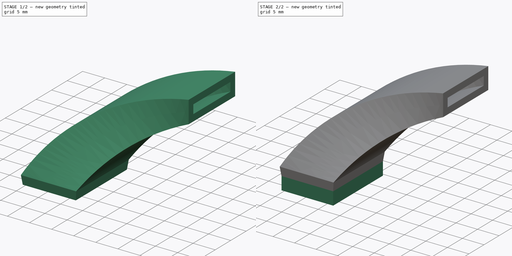
[diagram: build sequence overview — one tinted view per stage of 2, left to right]
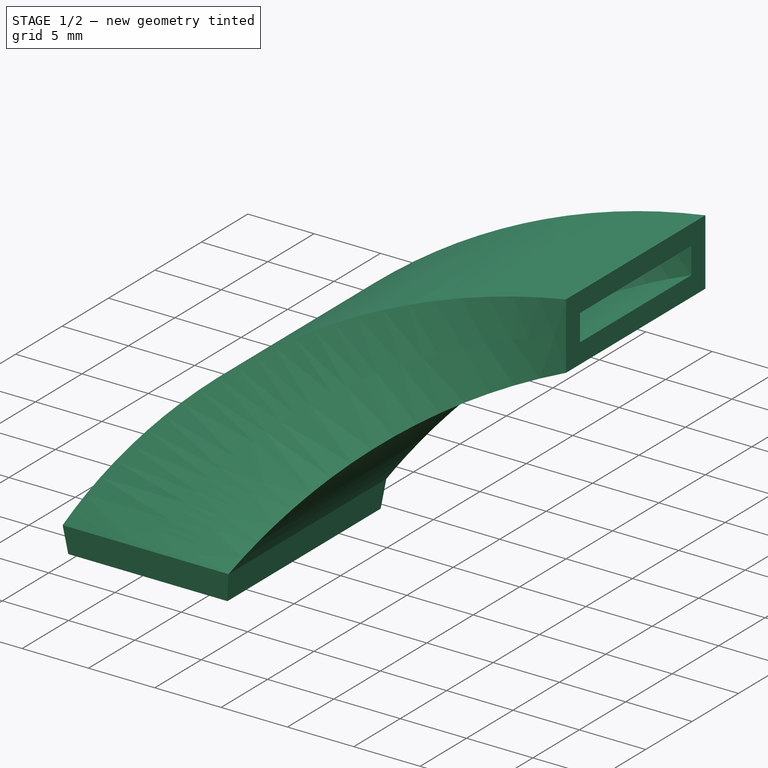
[diagram: stage 1 of 2 — iso view after this stage's code; geometry added in this stage tinted green]
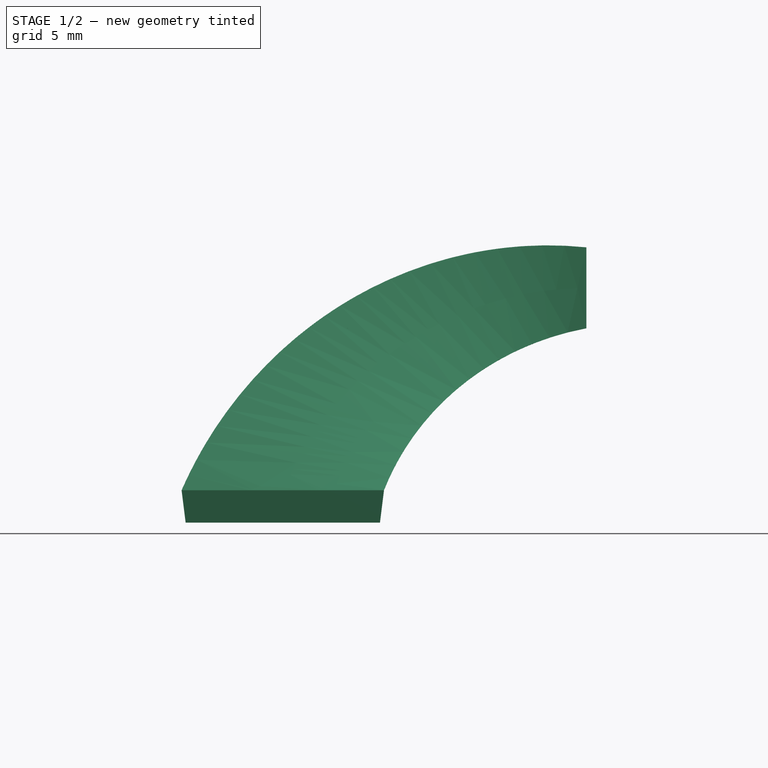
[diagram: stage 1 of 2 — front view after this stage's code; geometry added in this stage tinted green]
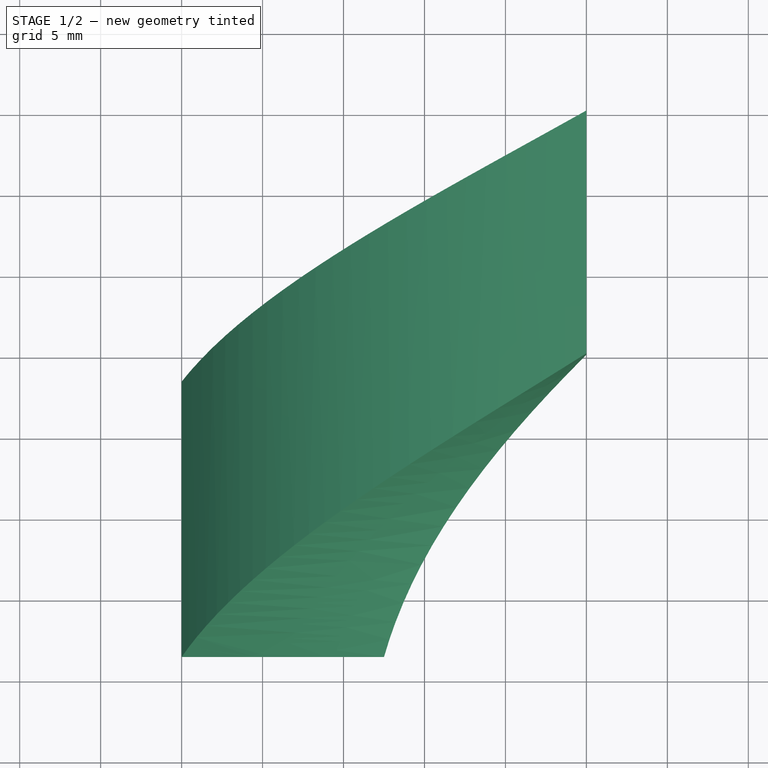
[diagram: stage 1 of 2 — top view after this stage's code; geometry added in this stage tinted green]
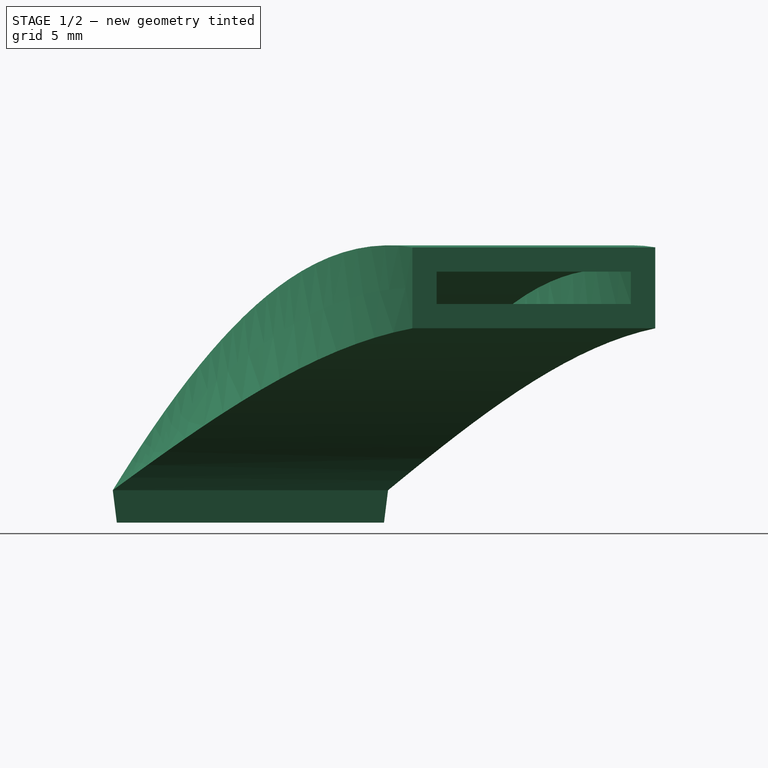
[diagram: stage 1 of 2 — right view after this stage's code; geometry added in this stage tinted green]
FCSTD DOCUMENT  (FreeCAD 0.19R24276 (Git))
Label: 3DX1_nozzle_duct
License: All rights reserved
LicenseURL: http://en.wikipedia.org/wiki/All_rights_reserved
objects: Sketcher::SketchObject×4, PartDesign::AdditivePipe×1, PartDesign::AdditiveLoft×1, PartDesign::Pad×1, PartDesign::Body×1
note: 11 computed .brp shape members not serialized (recipe doc carries the construction recipe); baked Part::Feature solids carry a one-line shape summary decoded from their .brp

FEATURE [Sketcher::SketchObject] Sketch
  FullyConstrained = true
  MapMode = 5
  Support = -> [XY_Plane]
  sketch-geometry (8):
    g0: LineSegment StartX=-25 StartY=8.5 StartZ=0 EndX=-12.5 EndY=8.5 EndZ=0
    g1: LineSegment StartX=-12.5 StartY=8.5 StartZ=0 EndX=-12.5 EndY=-8.5 EndZ=0
    g2: LineSegment StartX=-12.5 StartY=-8.5 StartZ=0 EndX=-25 EndY=-8.5 EndZ=0
    g3: LineSegment StartX=-25 StartY=-8.5 StartZ=0 EndX=-25 EndY=8.5 EndZ=0
    g4: LineSegment StartX=-23.5 StartY=7 StartZ=0 EndX=-14 EndY=7 EndZ=0
    g5: LineSegment StartX=-14 StartY=7 StartZ=0 EndX=-14 EndY=-7 EndZ=0
    g6: LineSegment StartX=-14 StartY=-7 StartZ=0 EndX=-23.5 EndY=-7 EndZ=0
    g7: LineSegment StartX=-23.5 StartY=-7 StartZ=0 EndX=-23.5 EndY=7 EndZ=0
  constraints (24):
    c: Coincident(g0,g1)
    c: Coincident(g1,g2)
    c: Coincident(g2,g3)
    c: Coincident(g3,g0)
    c: Horizontal(g0)
    c: Horizontal(g2)
    c: Vertical(g1)
    c: Vertical(g3)
    c: DistanceX(g0,g0) = 12.5
    c: DistanceY(g1,g1) = 17
    c: DistanceX(g0,g-1) = 25
    c: DistanceY(g-1,g0) = 8.5
    c: Coincident(g4,g5)
    c: Coincident(g5,g6)
    c: Coincident(g6,g7)
    c: Coincident(g7,g4)
    c: Horizontal(g4)
    c: Horizontal(g6)
    c: Vertical(g5)
    c: Vertical(g7)
    c: DistanceX(g4,g4) = 9.5
    c: DistanceY(g5,g5) = 14
    c: DistanceY(g4,g0) = 1.5
    c: DistanceX(g0,g4) = 1.5
FEATURE [Sketcher::SketchObject] Sketch001
  FullyConstrained = true
  MapMode = 5
  Placement = pos=(0,0,0) rot=(0.57735,0.57735,0.57735;2.0944rad)
  Support = -> [YZ_Plane]
  sketch-geometry (8):
    g0: LineSegment StartX=10 StartY=10 StartZ=0 EndX=25 EndY=10 EndZ=0
    g1: LineSegment StartX=25 StartY=10 StartZ=0 EndX=25 EndY=15 EndZ=0
    g2: LineSegment StartX=25 StartY=15 StartZ=0 EndX=10 EndY=15 EndZ=0
    g3: LineSegment StartX=10 StartY=15 StartZ=0 EndX=10 EndY=10 EndZ=0
    g4: LineSegment StartX=11.5 StartY=13.5 StartZ=0 EndX=23.5 EndY=13.5 EndZ=0
    g5: LineSegment StartX=23.5 StartY=13.5 StartZ=0 EndX=23.5 EndY=11.5 EndZ=0
    g6: LineSegment StartX=23.5 StartY=11.5 StartZ=0 EndX=11.5 EndY=11.5 EndZ=0
    g7: LineSegment StartX=11.5 StartY=11.5 StartZ=0 EndX=11.5 EndY=13.5 EndZ=0
  constraints (24):
    c: Coincident(g0,g1)
    c: Coincident(g1,g2)
    c: Coincident(g2,g3)
    c: Coincident(g3,g0)
    c: Horizontal(g0)
    c: Horizontal(g2)
    c: Vertical(g1)
    c: Vertical(g3)
    c: DistanceX(g2,g2) = 15
    c: DistanceY(g1,g1) = 5
    c: DistanceX(g-1,g0) = 25
    c: DistanceY(g-1,g2) = 15
    c: Coincident(g4,g5)
    c: Coincident(g5,g6)
    c: Coincident(g6,g7)
    c: Coincident(g7,g4)
    c: Horizontal(g4)
    c: Horizontal(g6)
    c: Vertical(g5)
    c: Vertical(g7)
    c: DistanceY(g4,g2) = 1.5
    c: DistanceY(g0,g6) = 1.5
    c: DistanceX(g2,g4) = 1.5
    c: DistanceX(g4,g1) = 1.5
FEATURE [Sketcher::SketchObject] Sketch002
  FullyConstrained = true
  MapMode = 5
  Placement = pos=(0,0,0) rot=(1,0,0;1.5708rad)
  Support = -> [XZ_Plane]
  sketch-geometry (1):
    g0: ArcOfCircle CenterX=0 CenterY=-8.19 CenterZ=0 NormalX=0 NormalY=0 NormalZ=1 AngleXU=0 Radius=20.69 StartAngle=1.5708 EndAngle=2.73461
  constraints (5):
    c: PointOnObject(g0,g-1)
    c: PointOnObject(g0,g-2)
    c: DistanceY(g-1,g0) = 12.5
    c: DistanceX(g0,g-1) = 19
    c: PointOnObject(g0,g-2)
FEATURE [PartDesign::AdditivePipe] AdditivePipe
  AuxilleryCurvelinear = true
  AuxillerySpineTangent = false
  Binormal = (0,0,0)
  Mode = 0
  Profile = -> Sketch
  Sections = -> [Sketch001]
  Spine = -> Sketch002 [Edge1]
  SpineTangent = false
  Transformation = 1
  Transition = 0
FEATURE [Sketcher::SketchObject] Sketch004
  AttachmentOffset = pos=(0,0,2) rot=(0,0,1;0rad)
  FullyConstrained = true
  MapMode = 5
  Placement = pos=(9.415e-13,-1e-16,-2) rot=(1,0,0;3.14159rad)
  Support = -> [AdditivePipe]
  sketch-geometry (8):
    g0: LineSegment StartX=-24.75 StartY=8.25 StartZ=0 EndX=-12.75 EndY=8.25 EndZ=0
    g1: LineSegment StartX=-12.75 StartY=8.25 StartZ=0 EndX=-12.75 EndY=-8.25 EndZ=0
    g2: LineSegment StartX=-12.75 StartY=-8.25 StartZ=0 EndX=-24.75 EndY=-8.25 EndZ=0
    g3: LineSegment StartX=-24.75 StartY=-8.25 StartZ=0 EndX=-24.75 EndY=8.25 EndZ=0
    g4: LineSegment StartX=-23.5 StartY=7 StartZ=0 EndX=-14 EndY=7 EndZ=0
    g5: LineSegment StartX=-14 StartY=7 StartZ=0 EndX=-14 EndY=-7 EndZ=0
    g6: LineSegment StartX=-14 StartY=-7 StartZ=0 EndX=-23.5 EndY=-7 EndZ=0
    g7: LineSegment StartX=-23.5 StartY=-7 StartZ=0 EndX=-23.5 EndY=7 EndZ=0
  constraints (24):
    c: Coincident(g0,g1)
    c: Coincident(g1,g2)
    c: Coincident(g2,g3)
    c: Coincident(g3,g0)
    c: Horizontal(g0)
    c: Horizontal(g2)
    c: Vertical(g1)
    c: Vertical(g3)
    c: DistanceX(g0,g0) = 12
    c: DistanceY(g1,g1) = 16.5
    c: DistanceX(g0,g-1) = 24.75
    c: DistanceY(g-1,g0) = 8.25
    c: Coincident(g4,g5)
    c: Coincident(g5,g6)
    c: Coincident(g6,g7)
    c: Coincident(g7,g4)
    c: Horizontal(g4)
    c: Horizontal(g6)
    c: Vertical(g5)
    c: Vertical(g7)
    c: DistanceX(g4,g4) = 9.5
    c: DistanceY(g5,g5) = 14
    c: DistanceY(g4,g0) = 1.25
    c: DistanceX(g0,g4) = 1.25
FEATURE [PartDesign::AdditiveLoft] AdditiveLoft
  BaseFeature = -> AdditivePipe
  Closed = false
  Profile = -> AdditivePipe [Face3]
  Ruled = false
  Sections = -> [Sketch004]
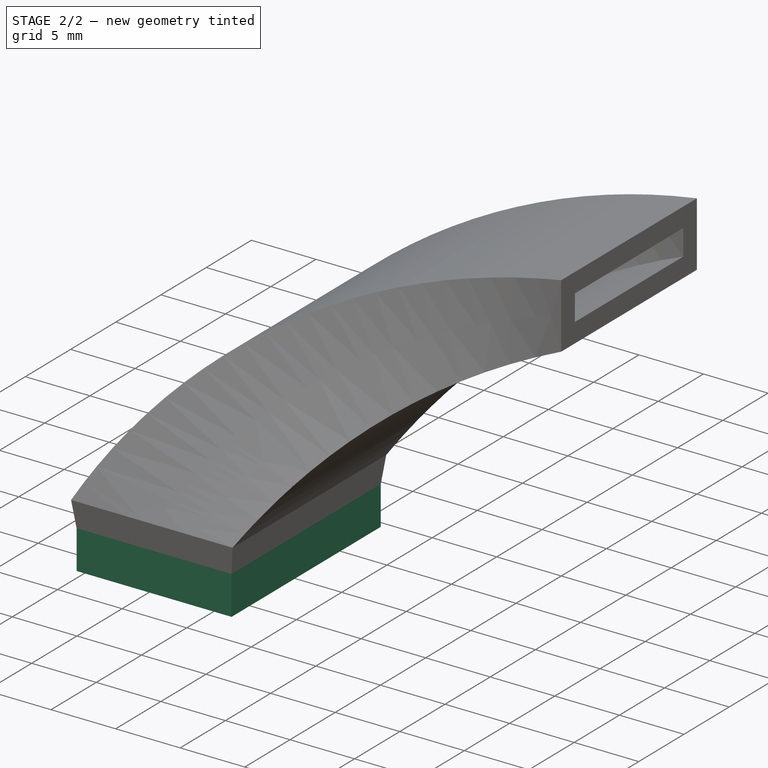
[diagram: stage 2 of 2 — iso view after this stage's code; geometry added in this stage tinted green]
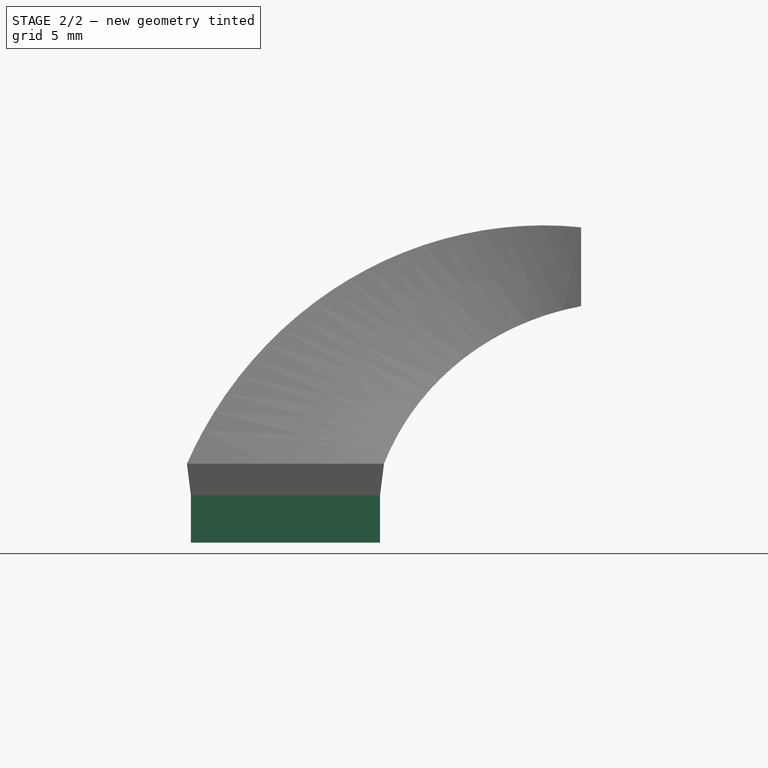
[diagram: stage 2 of 2 — front view after this stage's code; geometry added in this stage tinted green]
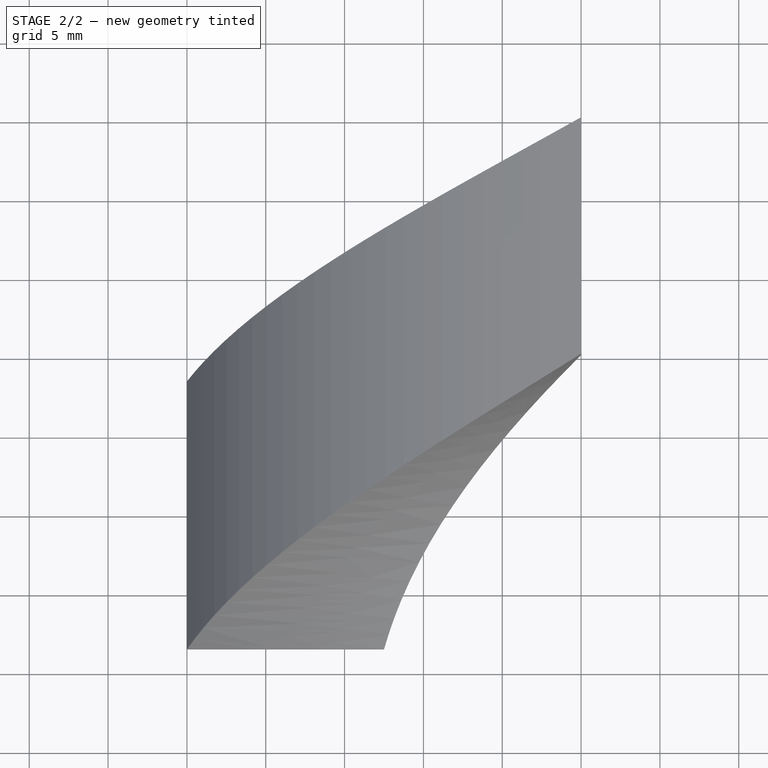
[diagram: stage 2 of 2 — top view after this stage's code; geometry added in this stage tinted green]
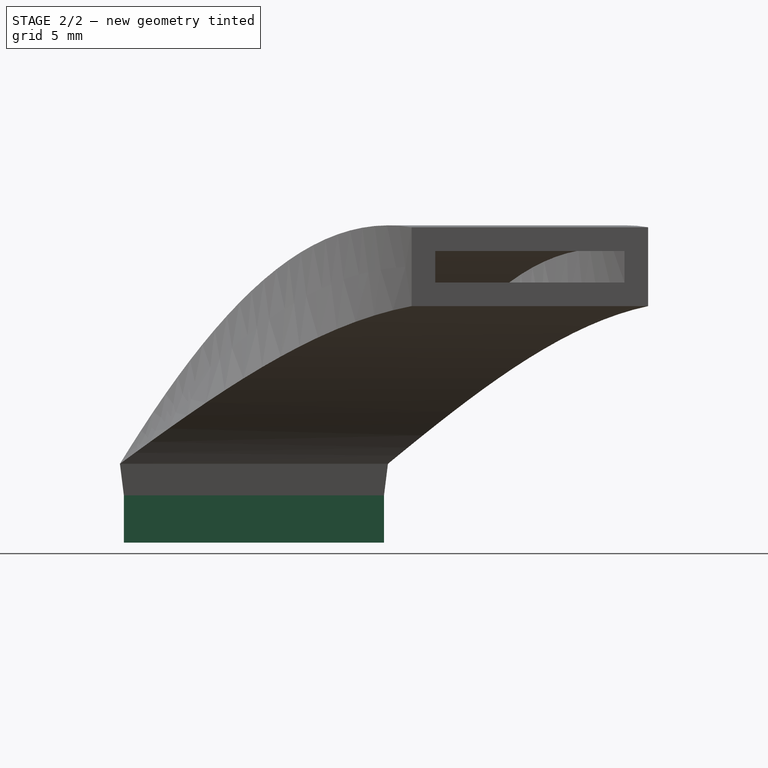
[diagram: stage 2 of 2 — right view after this stage's code; geometry added in this stage tinted green]
FEATURE [PartDesign::Pad] Pad
  BaseFeature = -> AdditiveLoft
  Direction = (1,1,1)
  Length = 3
  Length2 = 100
  Profile = -> AdditiveLoft [Face18]
  Type = 0
FEATURE [PartDesign::Body] Body
  Group = -> [Sketch,Sketch001,Sketch002,AdditivePipe,Sketch004,AdditiveLoft,Pad]
  Origin = -> Origin
  Tip = -> Pad
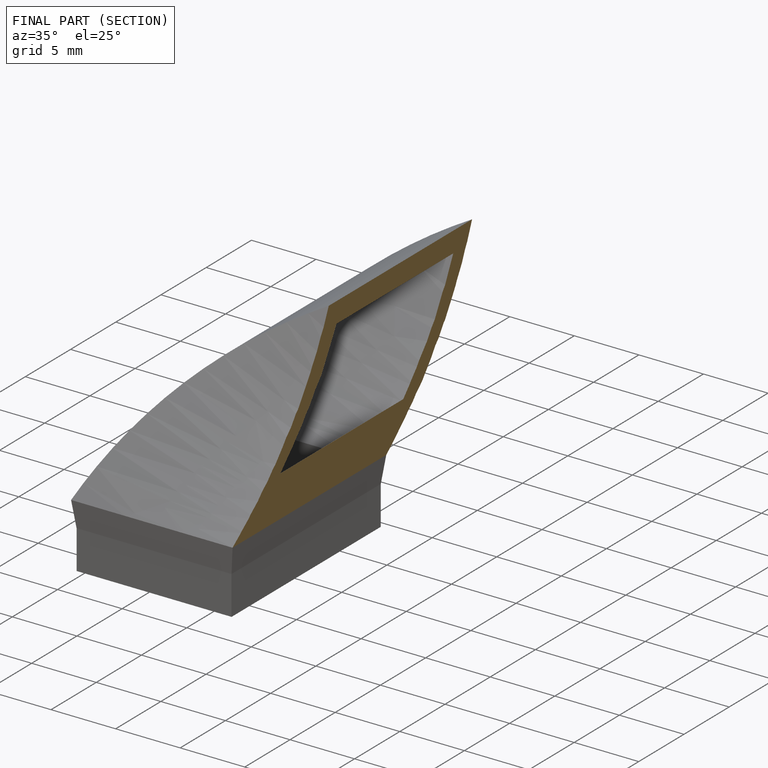
[diagram: finished part — half-section view (interior)]
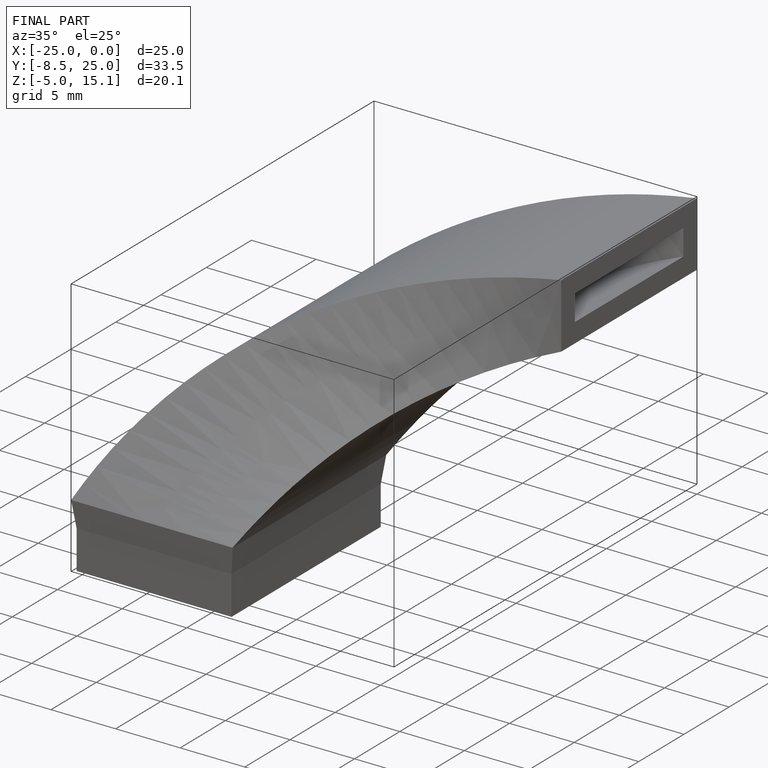
[diagram: finished part — iso view with bounding-box wireframe]
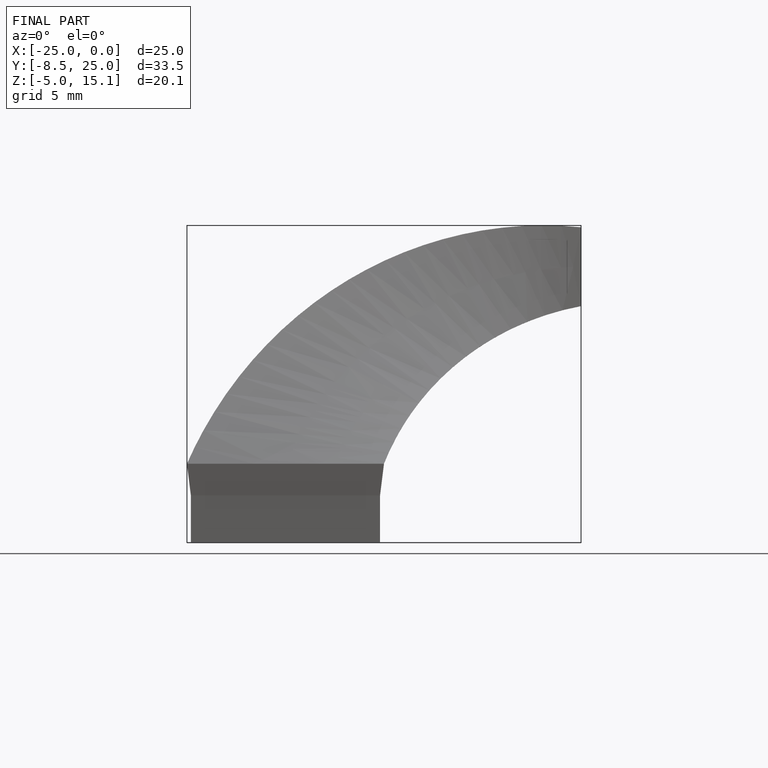
[diagram: finished part — front view with bounding-box wireframe]
